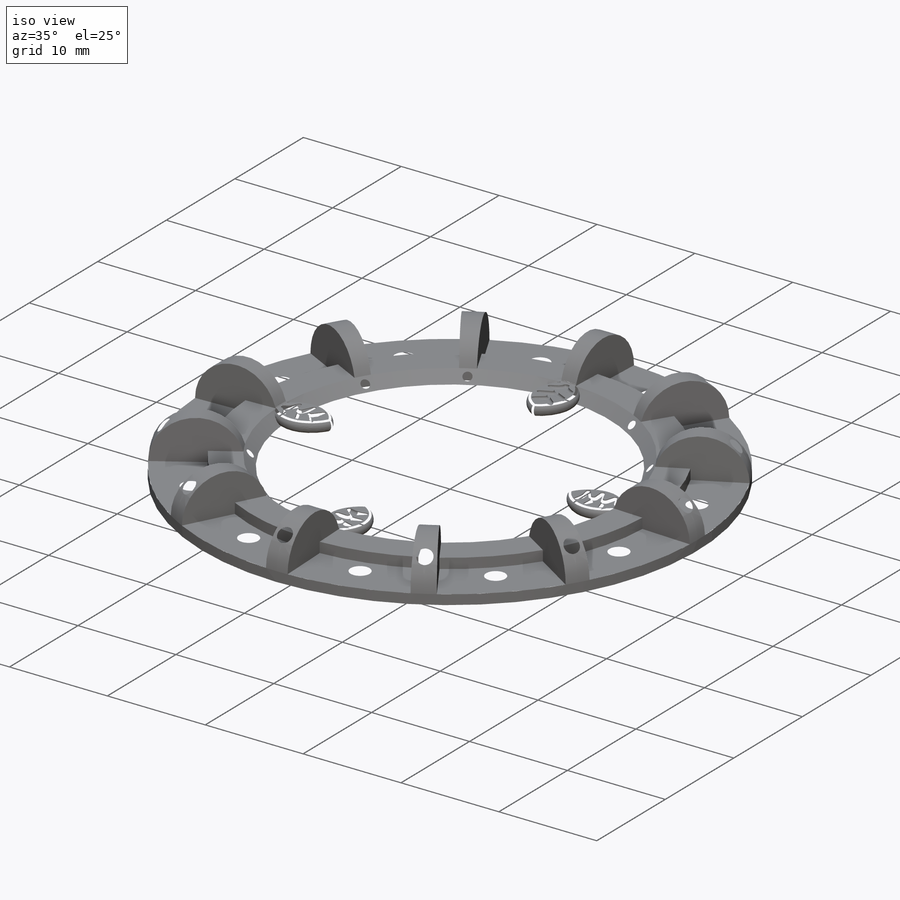
[diagram: iso view]
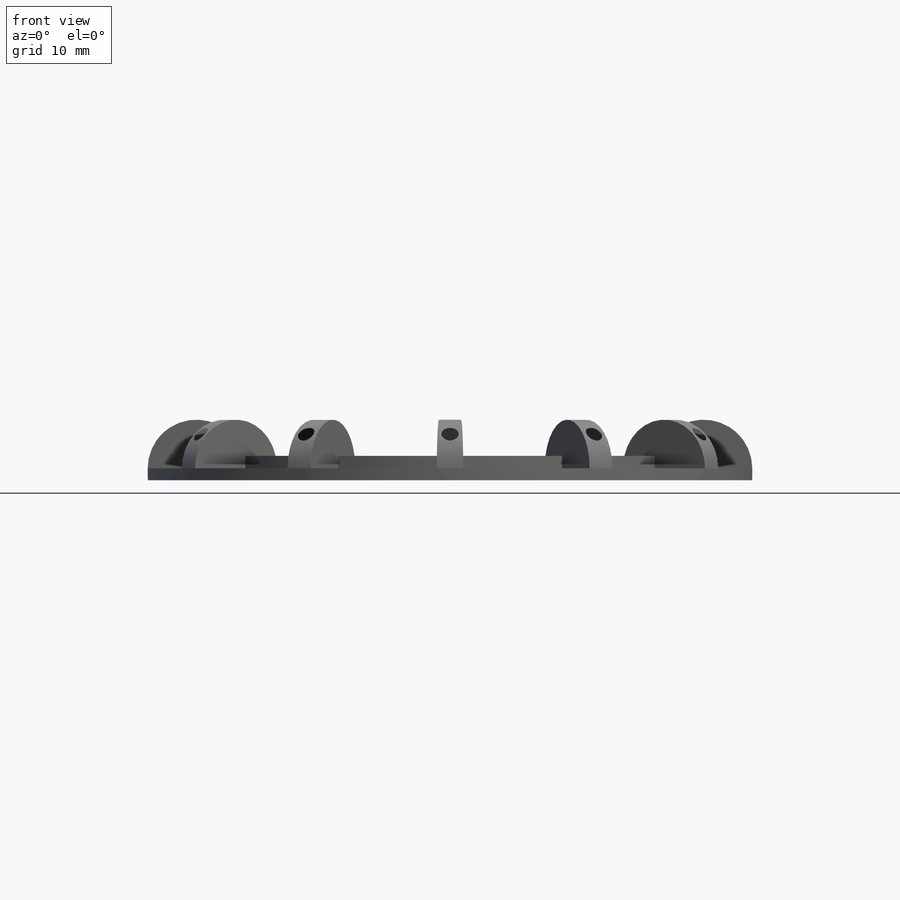
[diagram: front view]
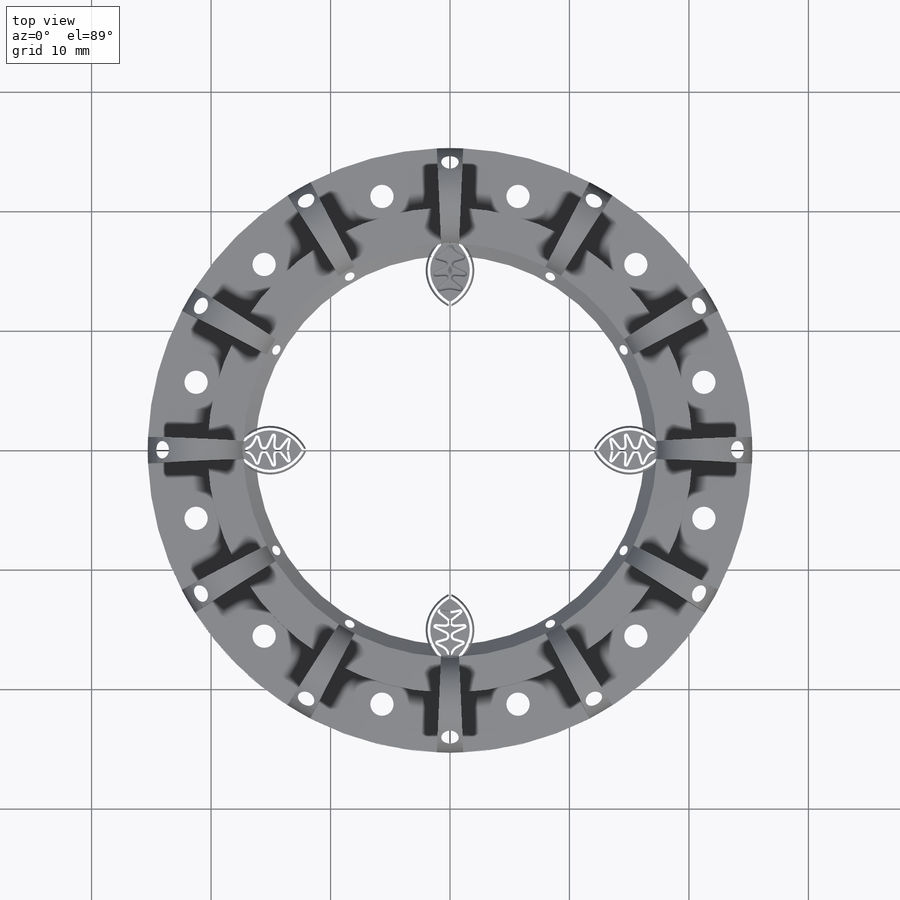
[diagram: top view]
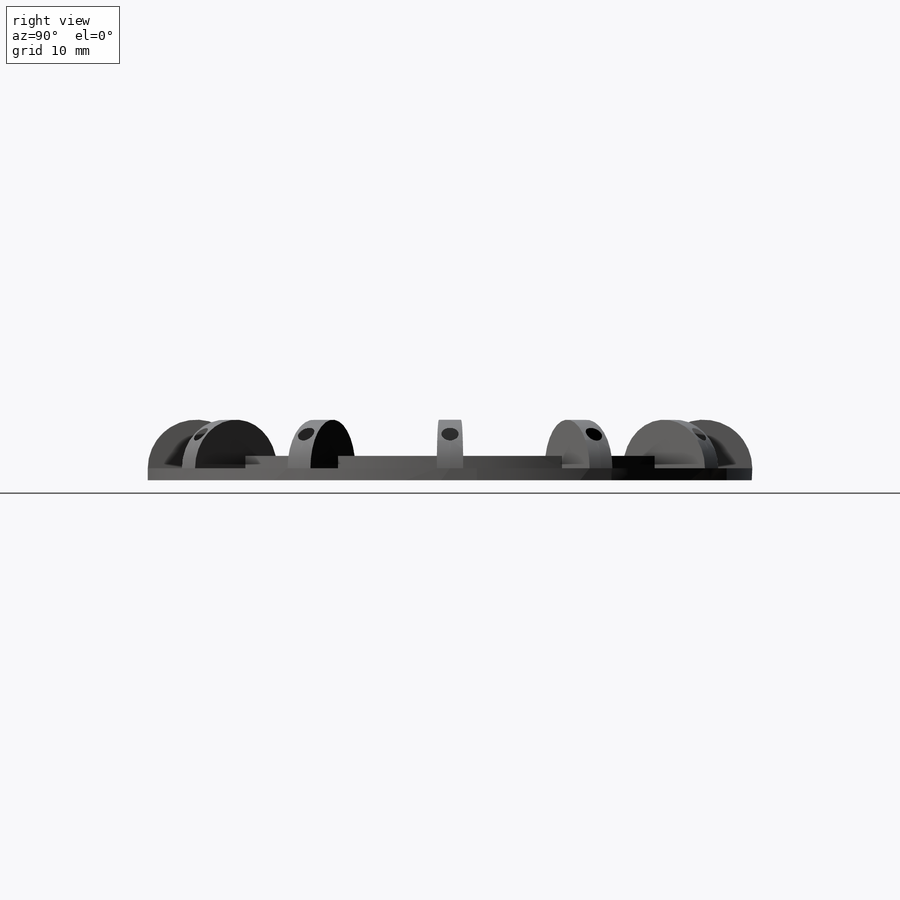
[diagram: right view]
SOLIDWORKS PART (.sldprt)
format: sldprt  version: not decoded by parser v0  size: 1,781,248 bytes
history: native  units: mm
features: sketch x11, fillet x9, pattern_circular x7, revolve x3, extrude x3, cut_extrude x3, material x1, sweep x1, mirror x1, plane x1, dome x1 (+11 scaffold rows collapsed)
feature tree (52):
  scaffold x11  (default folders/planes/origin — collapsed)
  material  "Material <not specified>"
  sketch  "Sketch2"  dims[c1.D1=19.3mm c1.D2=1.0mm c1.D3=7.0mm c1.D4=1.0mm c1.D5=1.0mm c1.D6=25.3mm c2.D3=17.3mm c2.D7=1.3941mm c3.D7=45.0deg]
  revolve  "Revolve1"  Angle=360deg
  sketch  "Sketch3"  dims[D1=~21.23229mm]
  revolve  "Revolve2"  Angle=5deg
  pattern_circular  "CirPattern1"  Count=12 Angle=30deg
  sketch  "Sketch4"  dims[D1=1.5mm D2=5.0mm]
  extrude  "Boss-Extrude1"  [1 undecoded]
  sketch  "Sketch7"
  sketch  "Sketch8"  dims[D1=0.0mm]
  sweep  "Sweep1"
  mirror  "Mirror1"
  fillet  "Fillet4"  Radius=0.2mm
  sketch  "Sketch5"  dims[c1.D1=0.4mm c1.D3=0.2mm c1.D4=0.2mm c1.D6=0.2mm c1.D2=~1.108197mm c2.D2=70.0deg c2.D5=14.75mm c2.D6=14.4mm c2.D1=0.2mm]
  cut_extrude  "Cut-Extrude1"  Depth=0.3mm
  fillet  "Fillet5"  Radius=0.2mm
  fillet  "Fillet6"  Radius=0.05mm
  fillet  "Fillet7"  Radius=0.2mm
  pattern_circular  "CirPattern5"  Count=4 Angle=360deg
  pattern_circular  "CirPattern6"  Count=4 Angle=360deg
  fillet  "Fillet8"  Radius=0.2mm
  fillet  "Fillet9"  Radius=0.2mm
  fillet  "Fillet10"  Radius=0.05mm
  fillet  "Fillet11"  Radius=0.2mm
  sketch  "Sketch6"  dims[D1=36.6mm D2=34.6mm]
  extrude  "Boss-Extrude2"  Depth=1mm
  fillet  "Fillet12"  Radius=0.3mm
  plane  "Plane1"
  sketch  "Sketch9"
  extrude  "Boss-Extrude3"  Depth=0.05mm
  dome  "Dome1"
  pattern_circular  "CirPattern7"  Count=12 Angle=360deg
  sketch  "Sketch10"  dims[c1.D1=45.0mm c1.D3=1.3mm c1.D2=~29.369551mm c2.D2=30.0deg]
  cut_extrude  "Cut-Extrude2"  Depth=4mm
  sketch  "Sketch11"  dims[c1.D1=~2.876305mm c2.D1=~44.79943deg c3.D1=~2.876305mm c4.D1=45.0deg c4.D2=1.5mm c4.D3=~4.47297mm c5.D1=3.9mm c5.D3=0.6mm]
  revolve  "Revolve3"  Angle=360deg
  pattern_circular  "CirPattern8"  Count=12 Angle=360deg
  pattern_circular  "CirPattern9"  Count=6 Angle=360deg
  sketch  "Sketch12"  dims[c1.D2=3.1mm c1.D3=44.0mm c1.D1=~30.869439mm c2.D1=15.0deg]
  cut_extrude  "Cut-Extrude3"  Depth=1mm
  pattern_circular  "CirPattern10"  Count=12 Angle=360deg
decode coverage: 33 of 39 modeling features carry decoded parameters
note: ~ marks probable driven/reference dimensions
note: 1 parameter value undecoded
note: suppression state not decoded; provenance and decode notes live in map.json
